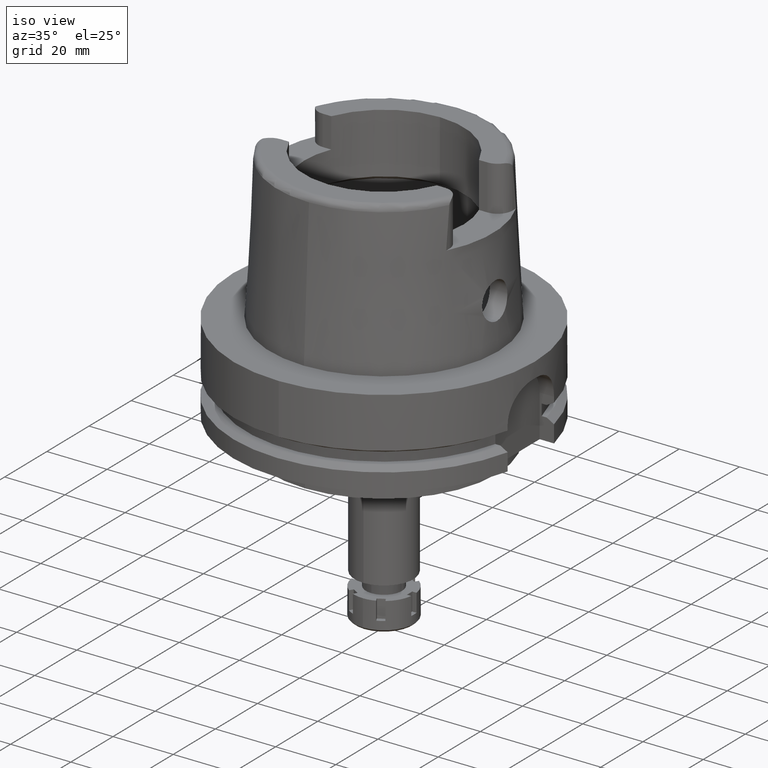
[diagram: clean part render]
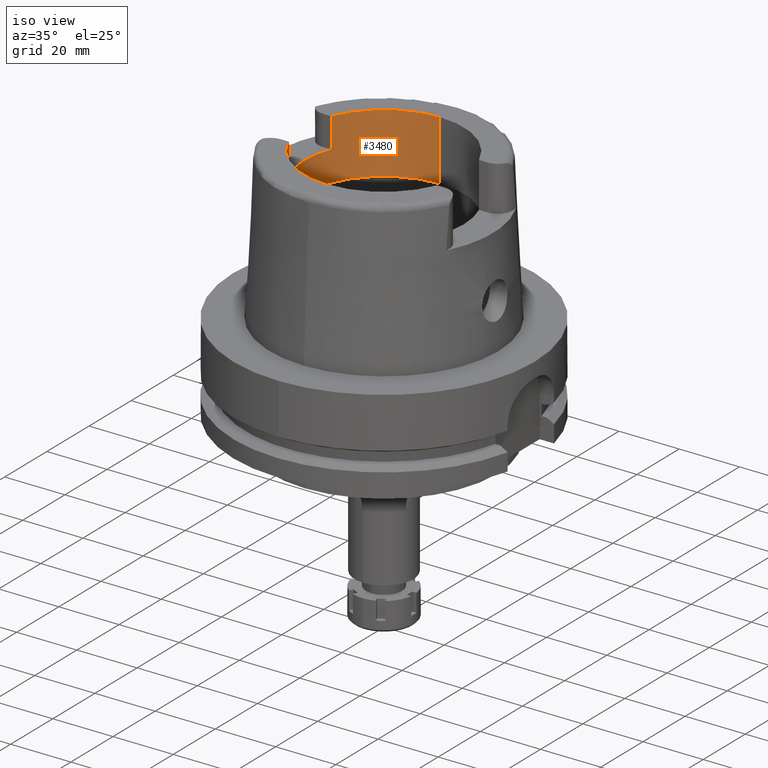
[diagram: same view with one face highlighted and labeled with its STEP entity id]
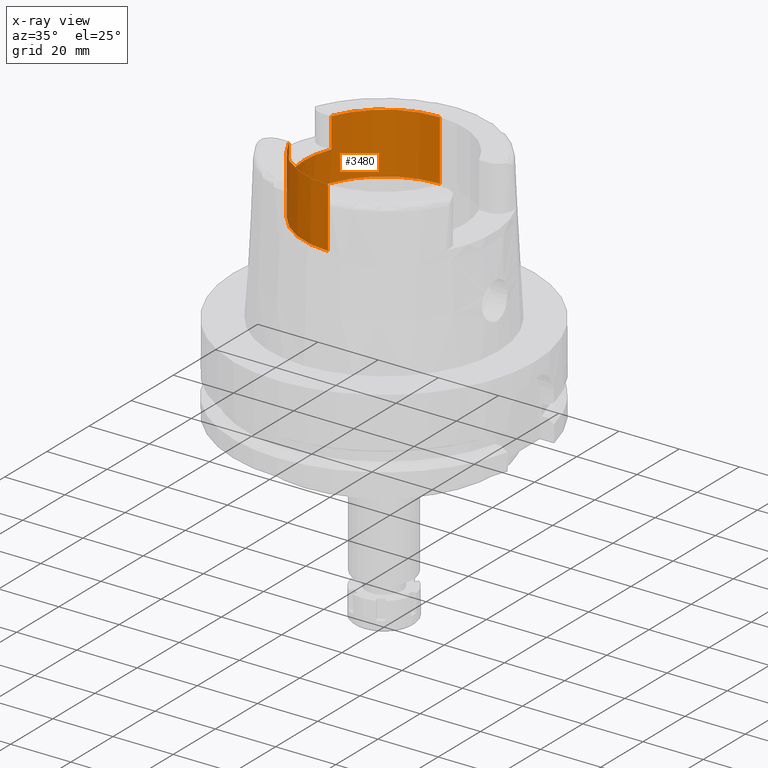
[diagram: x-ray of the same camera — body ghosted, the highlighted face saturated]
A machine part, iso view. The second image highlights one B-rep face of the part: STEP entity #3480.
The next image is the same camera in x-ray: the body ghosted, the highlighted face saturated — about 1% of this face is hidden behind the body in this view.
In plain terms, the highlighted cylindrical surface (partial cylindrical patch) has radius 26.5 mm, axis along (0, 0, 1).
Its self-contained STEP definition (entity closure, byte-faithful):
#28 = DIRECTION ( 'NONE',  ( 0.0000000000000000000, 0.0000000000000000000, 1.000000000000000000 ) ) ;
#49 = EDGE_CURVE ( 'NONE', #4358, #2695, #1314, .T. ) ;
#99 = CARTESIAN_POINT ( 'NONE',  ( -24.53670515777999839, -10.00999999999999979, 50.00000000000000000 ) ) ;
#105 = VERTEX_POINT ( 'NONE', #1166 ) ;
#135 = DIRECTION ( 'NONE',  ( 0.0000000000000000000, 0.0000000000000000000, 1.000000000000000000 ) ) ;
#158 = VERTEX_POINT ( 'NONE', #4507 ) ;
#239 = CIRCLE ( 'NONE', #1039, 26.50000000000000711 ) ;
#520 = VERTEX_POINT ( 'NONE', #3579 ) ;
#640 = CARTESIAN_POINT ( 'NONE',  ( -24.53670515777999839, 10.00999999999999979, 40.00000000000000000 ) ) ;
#668 = DIRECTION ( 'NONE',  ( 0.0000000000000000000, 0.0000000000000000000, 1.000000000000000000 ) ) ;
#753 = ORIENTED_EDGE ( 'NONE', *, *, #3277, .T. ) ;
#1039 = AXIS2_PLACEMENT_3D ( 'NONE', #2677, #4658, #2257 ) ;
#1166 = CARTESIAN_POINT ( 'NONE',  ( -24.53670515777999839, 10.00999999999999979, 40.00000000000000000 ) ) ;
#1214 = VERTEX_POINT ( 'NONE', #2566 ) ;
#1287 = LINE ( 'NONE', #5076, #5381 ) ;
#1314 = CIRCLE ( 'NONE', #4455, 26.50000000000000000 ) ;
#1610 = EDGE_CURVE ( 'NONE', #105, #2695, #5417, .T. ) ;
#1836 = EDGE_CURVE ( 'NONE', #520, #4358, #4920, .T. ) ;
#1871 = CARTESIAN_POINT ( 'NONE',  ( 0.0000000000000000000, 26.50000000000000000, 50.00000000000000000 ) ) ;
#1905 = DIRECTION ( 'NONE',  ( 0.0000000000000000000, 4.406108640804999471E-14, 1.000000000000000000 ) ) ;
#2046 = DIRECTION ( 'NONE',  ( 0.0000000000000000000, 1.000000000000000000, 0.0000000000000000000 ) ) ;
#2050 = DIRECTION ( 'NONE',  ( 0.0000000000000000000, 0.0000000000000000000, -1.000000000000000000 ) ) ;
#2079 = EDGE_CURVE ( 'NONE', #105, #1214, #239, .T. ) ;
#2257 = DIRECTION ( 'NONE',  ( -0.9259134021805098813, 0.3777358490566039562, 0.0000000000000000000 ) ) ;
#2311 = ORIENTED_EDGE ( 'NONE', *, *, #5576, .F. ) ;
#2363 = VECTOR ( 'NONE', #1905, 1000.000000000000000 ) ;
#2457 = FACE_OUTER_BOUND ( 'NONE', #4186, .T. ) ;
#2566 = CARTESIAN_POINT ( 'NONE',  ( -24.53670515777999839, -10.00999999999999979, 40.00000000000000000 ) ) ;
#2661 = AXIS2_PLACEMENT_3D ( 'NONE', #6078, #5726, #6202 ) ;
#2677 = CARTESIAN_POINT ( 'NONE',  ( 0.0000000000000000000, 0.0000000000000000000, 40.00000000000000000 ) ) ;
#2695 = VERTEX_POINT ( 'NONE', #6208 ) ;
#2863 = AXIS2_PLACEMENT_3D ( 'NONE', #5449, #2050, #3983 ) ;
#2871 = CYLINDRICAL_SURFACE ( 'NONE', #4581, 26.50000000000000000 ) ;
#3019 = CARTESIAN_POINT ( 'NONE',  ( 0.0000000000000000000, 26.50000000000000000, 30.00337567297000163 ) ) ;
#3157 = CIRCLE ( 'NONE', #2661, 26.50000000000000711 ) ;
#3181 = DIRECTION ( 'NONE',  ( 0.0000000000000000000, 0.0000000000000000000, -1.000000000000000000 ) ) ;
#3201 = ORIENTED_EDGE ( 'NONE', *, *, #49, .T. ) ;
#3277 = EDGE_CURVE ( 'NONE', #3392, #4934, #3157, .T. ) ;
#3350 = VECTOR ( 'NONE', #135, 1000.000000000000000 ) ;
#3392 = VERTEX_POINT ( 'NONE', #99 ) ;
#3401 = ORIENTED_EDGE ( 'NONE', *, *, #2079, .T. ) ;
#3466 = CARTESIAN_POINT ( 'NONE',  ( 0.0000000000000000000, 0.0000000000000000000, -91.75000000000000000 ) ) ;
#3480 = ADVANCED_FACE ( 'NONE', ( #2457 ), #2871, .F. ) ;
#3579 = CARTESIAN_POINT ( 'NONE',  ( 0.0000000000000000000, 26.50000000000000000, 30.00337567297000163 ) ) ;
#3666 = ORIENTED_EDGE ( 'NONE', *, *, #1610, .F. ) ;
#3983 = DIRECTION ( 'NONE',  ( 0.0000000000000000000, -1.000000000000000000, 0.0000000000000000000 ) ) ;
#4116 = ORIENTED_EDGE ( 'NONE', *, *, #1836, .T. ) ;
#4186 = EDGE_LOOP ( 'NONE', ( #2311, #753, #6181, #5902, #4116, #3201, #3666, #3401 ) ) ;
#4358 = VERTEX_POINT ( 'NONE', #1871 ) ;
#4377 = CIRCLE ( 'NONE', #2863, 26.50000000000000000 ) ;
#4447 = CARTESIAN_POINT ( 'NONE',  ( 0.0000000000000000000, 0.0000000000000000000, 50.00000000000000000 ) ) ;
#4455 = AXIS2_PLACEMENT_3D ( 'NONE', #4447, #668, #5943 ) ;
#4507 = CARTESIAN_POINT ( 'NONE',  ( 0.0000000000000000000, -26.50000000000000000, 30.00337567297000163 ) ) ;
#4566 = VECTOR ( 'NONE', #5475, 1000.000000000000000 ) ;
#4581 = AXIS2_PLACEMENT_3D ( 'NONE', #3466, #28, #2046 ) ;
#4658 = DIRECTION ( 'NONE',  ( 0.0000000000000000000, 0.0000000000000000000, 1.000000000000000000 ) ) ;
#4920 = LINE ( 'NONE', #3019, #4566 ) ;
#4934 = VERTEX_POINT ( 'NONE', #5715 ) ;
#5076 = CARTESIAN_POINT ( 'NONE',  ( -24.53670515777999839, -10.00999999999999979, 50.00000000000000000 ) ) ;
#5381 = VECTOR ( 'NONE', #3181, 1000.000000000000000 ) ;
#5417 = LINE ( 'NONE', #640, #3350 ) ;
#5425 = EDGE_CURVE ( 'NONE', #158, #520, #4377, .T. ) ;
#5449 = CARTESIAN_POINT ( 'NONE',  ( 0.0000000000000000000, 0.0000000000000000000, 30.00337567297000163 ) ) ;
#5475 = DIRECTION ( 'NONE',  ( 0.0000000000000000000, -4.406108640804999471E-14, 1.000000000000000000 ) ) ;
#5576 = EDGE_CURVE ( 'NONE', #3392, #1214, #1287, .T. ) ;
#5715 = CARTESIAN_POINT ( 'NONE',  ( 0.0000000000000000000, -26.50000000000000000, 50.00000000000000000 ) ) ;
#5726 = DIRECTION ( 'NONE',  ( 0.0000000000000000000, 0.0000000000000000000, 1.000000000000000000 ) ) ;
#5844 = EDGE_CURVE ( 'NONE', #158, #4934, #6218, .T. ) ;
#5902 = ORIENTED_EDGE ( 'NONE', *, *, #5425, .T. ) ;
#5943 = DIRECTION ( 'NONE',  ( 0.0000000000000000000, 1.000000000000000000, 0.0000000000000000000 ) ) ;
#6078 = CARTESIAN_POINT ( 'NONE',  ( 0.0000000000000000000, 0.0000000000000000000, 50.00000000000000000 ) ) ;
#6125 = CARTESIAN_POINT ( 'NONE',  ( 0.0000000000000000000, -26.50000000000000000, 30.00337567297000163 ) ) ;
#6181 = ORIENTED_EDGE ( 'NONE', *, *, #5844, .F. ) ;
#6202 = DIRECTION ( 'NONE',  ( -0.9259134021805098813, -0.3777358490566039562, 0.0000000000000000000 ) ) ;
#6208 = CARTESIAN_POINT ( 'NONE',  ( -24.53670515777999839, 10.00999999999999979, 50.00000000000000000 ) ) ;
#6218 = LINE ( 'NONE', #6125, #2363 ) ;